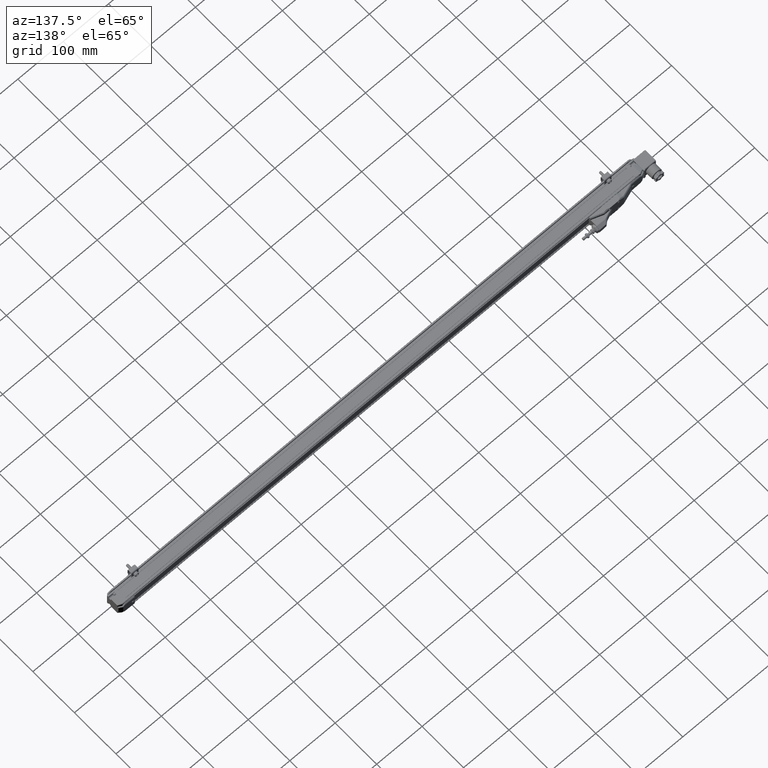
[diagram: clean part render]
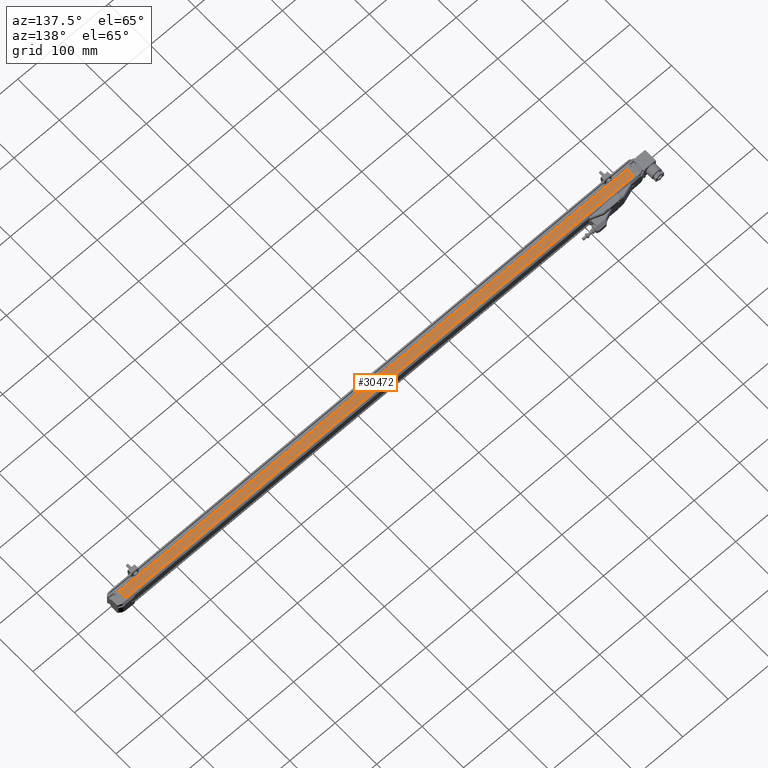
[diagram: same view with one face highlighted and labeled with its STEP entity id]
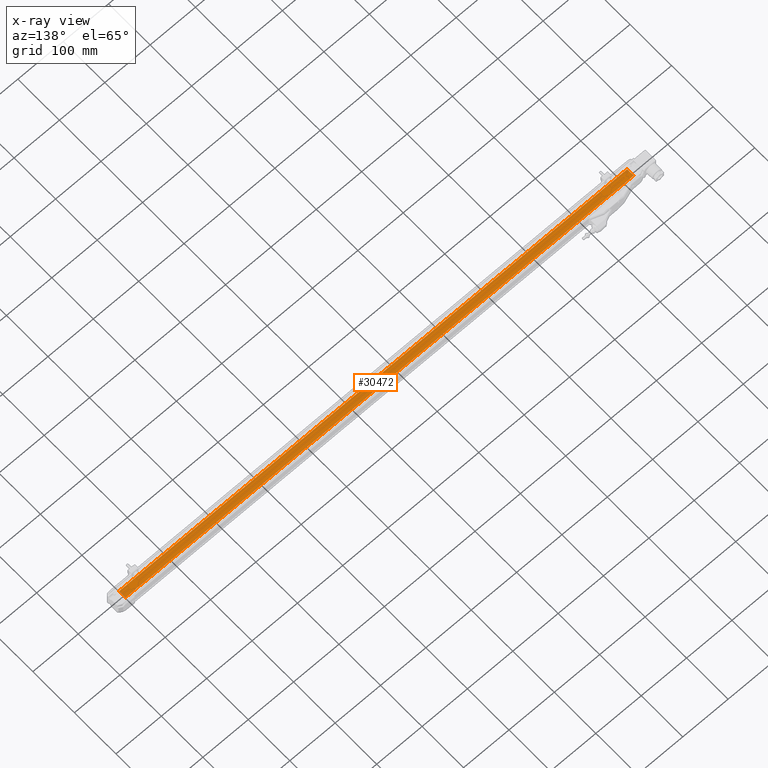
[diagram: x-ray of the same camera — body ghosted, the highlighted face saturated]
A machine part, auxiliary view. The second image highlights one B-rep face of the part: STEP entity #30472.
The next image is the same camera in x-ray: the body ghosted, the highlighted face saturated — about 0% of this face is hidden behind the body in this view.
In plain terms, the highlighted planar face has unit normal (-0, -0, -1).
Its self-contained STEP definition (entity closure, byte-faithful):
#546 = CARTESIAN_POINT ( 'NONE',  ( 32.28346456692914046, 0.4468503849212597800, 0.000000000000000000 ) ) ;
#2780 = VERTEX_POINT ( 'NONE', #13584 ) ;
#3360 = EDGE_CURVE ( 'NONE', #7176, #17740, #26825, .T. ) ;
#5985 = EDGE_CURVE ( 'NONE', #2780, #16527, #41013, .T. ) ;
#6294 = EDGE_CURVE ( 'NONE', #16527, #17740, #43503, .T. ) ;
#7176 = VERTEX_POINT ( 'NONE', #546 ) ;
#8035 = DIRECTION ( 'NONE',  ( 6.829894528618835672E-25, 1.000000000000000000, -1.936991253392631728E-26 ) ) ;
#8614 = EDGE_LOOP ( 'NONE', ( #42648, #15612, #20039, #39991 ) ) ;
#9146 = CARTESIAN_POINT ( 'NONE',  ( -11.81102362204724621, 0.4468503849212597800, 0.000000000000000000 ) ) ;
#11836 = CARTESIAN_POINT ( 'NONE',  ( -11.81102362204724621, 1.061023630314960498, 0.000000000000000000 ) ) ;
#11943 = DIRECTION ( 'NONE',  ( 6.829894528618835672E-25, 1.000000000000000000, -1.936991253392631728E-26 ) ) ;
#11960 = CARTESIAN_POINT ( 'NONE',  ( 32.28346456692914046, 0.4468503849212597800, 0.000000000000000000 ) ) ;
#13584 = CARTESIAN_POINT ( 'NONE',  ( -11.81102362204724621, 0.4468503849212597800, 0.000000000000000000 ) ) ;
#14459 = EDGE_CURVE ( 'NONE', #2780, #7176, #43814, .T. ) ;
#14712 = VECTOR ( 'NONE', #11943, 39.37007874015748143 ) ;
#15612 = ORIENTED_EDGE ( 'NONE', *, *, #6294, .F. ) ;
#16135 = FACE_OUTER_BOUND ( 'NONE', #8614, .T. ) ;
#16527 = VERTEX_POINT ( 'NONE', #39993 ) ;
#17545 = AXIS2_PLACEMENT_3D ( 'NONE', #30525, #20291, #34469 ) ;
#17740 = VERTEX_POINT ( 'NONE', #18421 ) ;
#18421 = CARTESIAN_POINT ( 'NONE',  ( 32.28346456692914046, 1.061023630314960498, 0.000000000000000000 ) ) ;
#20039 = ORIENTED_EDGE ( 'NONE', *, *, #5985, .F. ) ;
#20291 = DIRECTION ( 'NONE',  ( -1.341063538875720069E-28, -1.936991253392631728E-26, -1.000000000000000000 ) ) ;
#21100 = VECTOR ( 'NONE', #8035, 39.37007874015748143 ) ;
#25679 = VECTOR ( 'NONE', #42471, 39.37007874015748143 ) ;
#25820 = DIRECTION ( 'NONE',  ( 1.000000000000000000, -6.829894528618835672E-25, -1.341063538875720069E-28 ) ) ;
#26825 = LINE ( 'NONE', #11960, #21100 ) ;
#30302 = PLANE ( 'NONE',  #17545 ) ;
#30472 = ADVANCED_FACE ( 'NONE', ( #16135 ), #30302, .F. ) ;
#30525 = CARTESIAN_POINT ( 'NONE',  ( -11.81102362204724621, 0.4468503849212597800, 0.000000000000000000 ) ) ;
#33784 = VECTOR ( 'NONE', #25820, 39.37007874015748143 ) ;
#34469 = DIRECTION ( 'NONE',  ( -1.000000000000000000, 6.829894528618835672E-25, 1.341063538875720069E-28 ) ) ;
#39991 = ORIENTED_EDGE ( 'NONE', *, *, #14459, .T. ) ;
#39993 = CARTESIAN_POINT ( 'NONE',  ( -11.81102362204724621, 1.061023630314960498, 0.000000000000000000 ) ) ;
#41013 = LINE ( 'NONE', #9146, #14712 ) ;
#42471 = DIRECTION ( 'NONE',  ( 1.000000000000000000, -6.829894528618835672E-25, -1.341063538875720069E-28 ) ) ;
#42648 = ORIENTED_EDGE ( 'NONE', *, *, #3360, .T. ) ;
#43503 = LINE ( 'NONE', #11836, #33784 ) ;
#43814 = LINE ( 'NONE', #45989, #25679 ) ;
#45989 = CARTESIAN_POINT ( 'NONE',  ( -11.81102362204724621, 0.4468503849212597800, 0.000000000000000000 ) ) ;